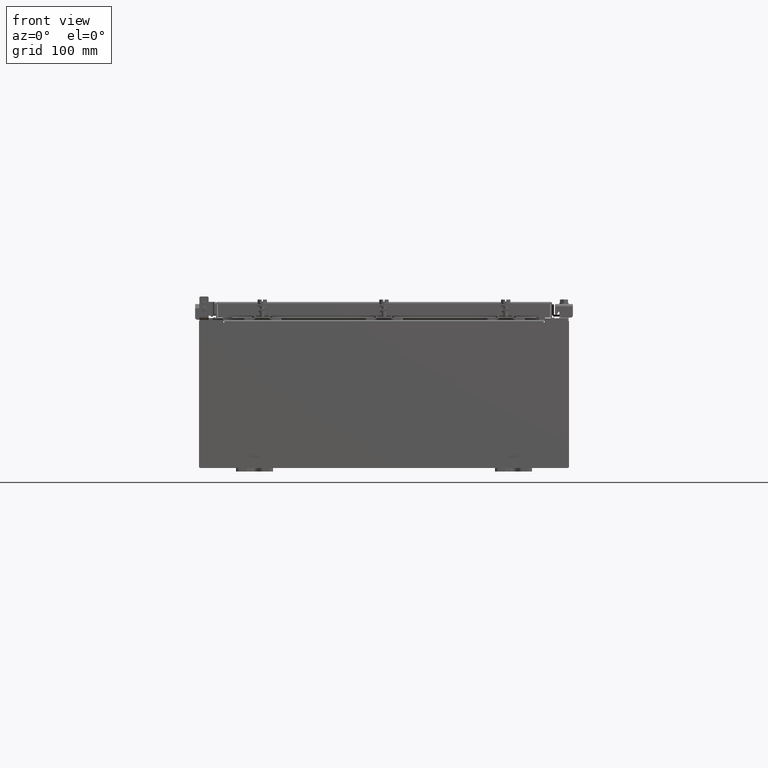
[diagram: clean part render]
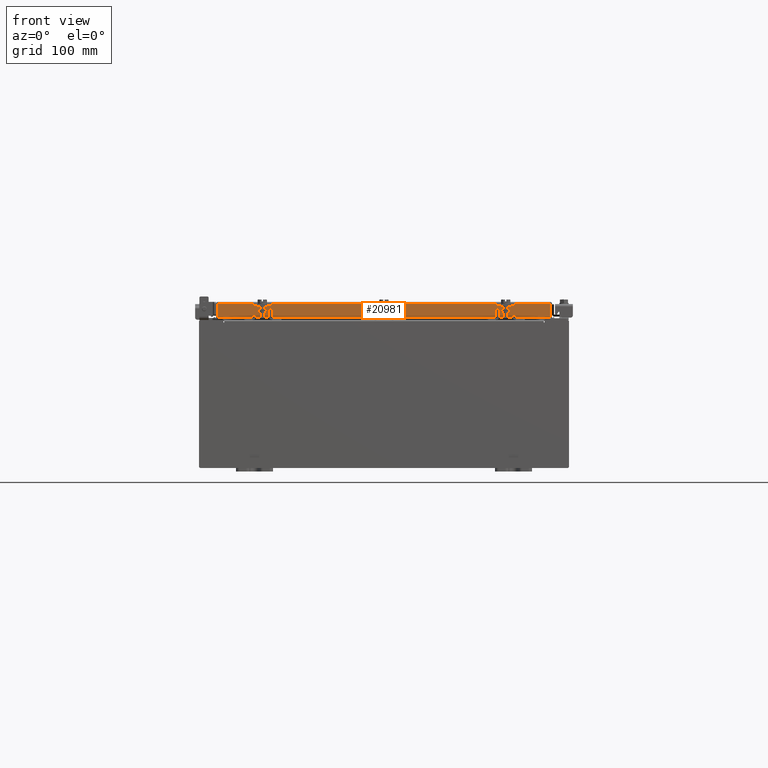
[diagram: same view with one face highlighted and labeled with its STEP entity id]
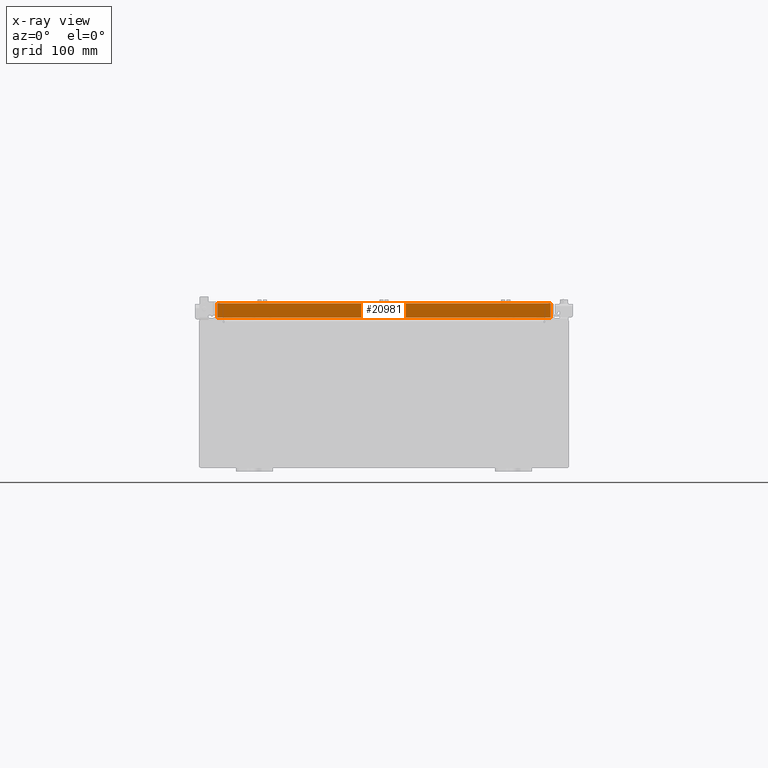
[diagram: x-ray of the same camera — body ghosted, the highlighted face saturated]
A machine part, front view. The second image highlights one B-rep face of the part: STEP entity #20981.
The next image is the same camera in x-ray: the body ghosted, the highlighted face saturated — about 0% of this face is hidden behind the body in this view.
In plain terms, the highlighted planar face has unit normal (0, 1, -0).
Its self-contained STEP definition (entity closure, byte-faithful):
#544 = CARTESIAN_POINT ( 'NONE',  ( -8.239157864376263500, -14.09399999999999900, -0.8500000000000006400 ) ) ;
#814 = CARTESIAN_POINT ( 'NONE',  ( 9.078000000000001200, -14.09400000000000300, -0.8499999999999996400 ) ) ;
#1185 = VECTOR ( 'NONE', #16576, 39.37007874015748100 ) ;
#1323 = CARTESIAN_POINT ( 'NONE',  ( 8.989157864376256400, -14.09400000000000100, -0.08770000000000007000 ) ) ;
#1863 = DIRECTION ( 'NONE',  ( 0.0000000000000000000, -2.818880942772360100E-015, -1.000000000000000000 ) ) ;
#2042 = CARTESIAN_POINT ( 'NONE',  ( 8.989157864376270600, -14.09400000000000100, -0.07469999999999978000 ) ) ;
#2476 = ORIENTED_EDGE ( 'NONE', *, *, #3836, .F. ) ;
#3452 = ORIENTED_EDGE ( 'NONE', *, *, #10278, .T. ) ;
#3836 = EDGE_CURVE ( 'NONE', #6863, #21146, #4842, .T. ) ;
#4251 = LINE ( 'NONE', #6259, #17951 ) ;
#4319 = EDGE_CURVE ( 'NONE', #9767, #22399, #4251, .T. ) ;
#4482 = DIRECTION ( 'NONE',  ( -1.000000000000000000, 1.203722403024570700E-016, 1.203722403024571000E-016 ) ) ;
#4710 = EDGE_LOOP ( 'NONE', ( #12424, #3452, #21079, #15600, #22258, #2476 ) ) ;
#4842 = LINE ( 'NONE', #2042, #18536 ) ;
#5691 = VECTOR ( 'NONE', #20538, 39.37007874015748100 ) ;
#6259 = CARTESIAN_POINT ( 'NONE',  ( 9.078000000000001200, -14.09400000000000300, -0.8499999999999996400 ) ) ;
#6468 = DIRECTION ( 'NONE',  ( 0.0000000000000000000, 2.818880942772360100E-015, 1.000000000000000000 ) ) ;
#6605 = CARTESIAN_POINT ( 'NONE',  ( 8.239157864376270600, -14.09399999999999900, -0.8500000000000006400 ) ) ;
#6863 = VERTEX_POINT ( 'NONE', #1323 ) ;
#7381 = CARTESIAN_POINT ( 'NONE',  ( 8.239157864376268800, -14.09399999999999900, -0.8500000000000006400 ) ) ;
#8418 = DIRECTION ( 'NONE',  ( -1.000000000000000000, 0.0000000000000000000, 0.0000000000000000000 ) ) ;
#9366 = EDGE_CURVE ( 'NONE', #13355, #9767, #15146, .T. ) ;
#9704 = CARTESIAN_POINT ( 'NONE',  ( -8.989157864376265300, -14.09399999999999900, -0.08770000000000007000 ) ) ;
#9767 = VERTEX_POINT ( 'NONE', #544 ) ;
#10098 = LINE ( 'NONE', #13066, #1185 ) ;
#10278 = EDGE_CURVE ( 'NONE', #22145, #22399, #19370, .T. ) ;
#10296 = AXIS2_PLACEMENT_3D ( 'NONE', #22552, #17183, #6468 ) ;
#10434 = LINE ( 'NONE', #814, #5691 ) ;
#10472 = CARTESIAN_POINT ( 'NONE',  ( 8.989157864376270600, -14.09400000000000300, -0.8499999999999996400 ) ) ;
#10523 = EDGE_CURVE ( 'NONE', #22145, #6863, #10098, .T. ) ;
#11693 = PLANE ( 'NONE',  #10296 ) ;
#12424 = ORIENTED_EDGE ( 'NONE', *, *, #10523, .F. ) ;
#12912 = VECTOR ( 'NONE', #1863, 39.37007874015748100 ) ;
#13066 = CARTESIAN_POINT ( 'NONE',  ( 9.078000000000001200, -14.09400000000000100, -0.08770000000000007000 ) ) ;
#13355 = VERTEX_POINT ( 'NONE', #7381 ) ;
#14430 = DIRECTION ( 'NONE',  ( 0.0000000000000000000, -2.818880942772360100E-015, -1.000000000000000000 ) ) ;
#15146 = LINE ( 'NONE', #6605, #20510 ) ;
#15600 = ORIENTED_EDGE ( 'NONE', *, *, #9366, .F. ) ;
#16118 = CARTESIAN_POINT ( 'NONE',  ( -8.989157864376265300, -14.09399999999999900, 3.999012166344521600E-014 ) ) ;
#16576 = DIRECTION ( 'NONE',  ( 1.000000000000000000, -1.203722403024567300E-016, -9.633926942233120500E-046 ) ) ;
#17183 = DIRECTION ( 'NONE',  ( 1.203722403024567300E-016, 1.000000000000000000, -2.818880942772360100E-015 ) ) ;
#17951 = VECTOR ( 'NONE', #4482, 39.37007874015748100 ) ;
#18536 = VECTOR ( 'NONE', #14430, 39.37007874015748100 ) ;
#19100 = EDGE_CURVE ( 'NONE', #21146, #13355, #10434, .T. ) ;
#19370 = LINE ( 'NONE', #16118, #12912 ) ;
#19607 = FACE_OUTER_BOUND ( 'NONE', #4710, .T. ) ;
#20510 = VECTOR ( 'NONE', #8418, 39.37007874015748100 ) ;
#20538 = DIRECTION ( 'NONE',  ( -1.000000000000000000, 1.203722403024570700E-016, 1.203722403024571000E-016 ) ) ;
#20981 = ADVANCED_FACE ( 'NONE', ( #19607 ), #11693, .F. ) ;
#21003 = CARTESIAN_POINT ( 'NONE',  ( -8.989157864376265300, -14.09400000000000100, -0.8499999999999975400 ) ) ;
#21079 = ORIENTED_EDGE ( 'NONE', *, *, #4319, .F. ) ;
#21146 = VERTEX_POINT ( 'NONE', #10472 ) ;
#22145 = VERTEX_POINT ( 'NONE', #9704 ) ;
#22258 = ORIENTED_EDGE ( 'NONE', *, *, #19100, .F. ) ;
#22399 = VERTEX_POINT ( 'NONE', #21003 ) ;
#22552 = CARTESIAN_POINT ( 'NONE',  ( -1.696526354822824800E-015, -14.09399999999999900, 3.999012166344521600E-014 ) ) ;